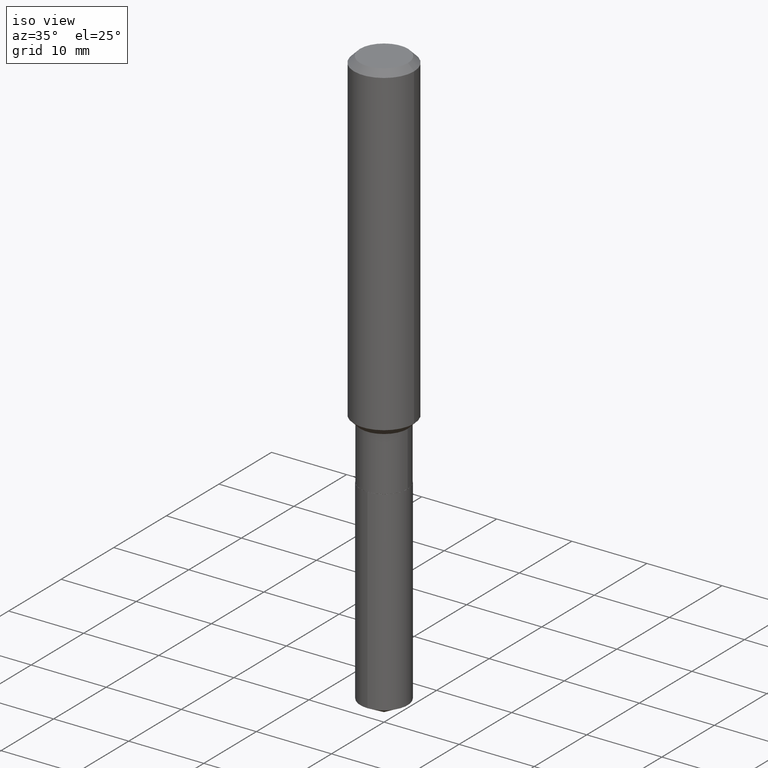
[diagram: clean part render]
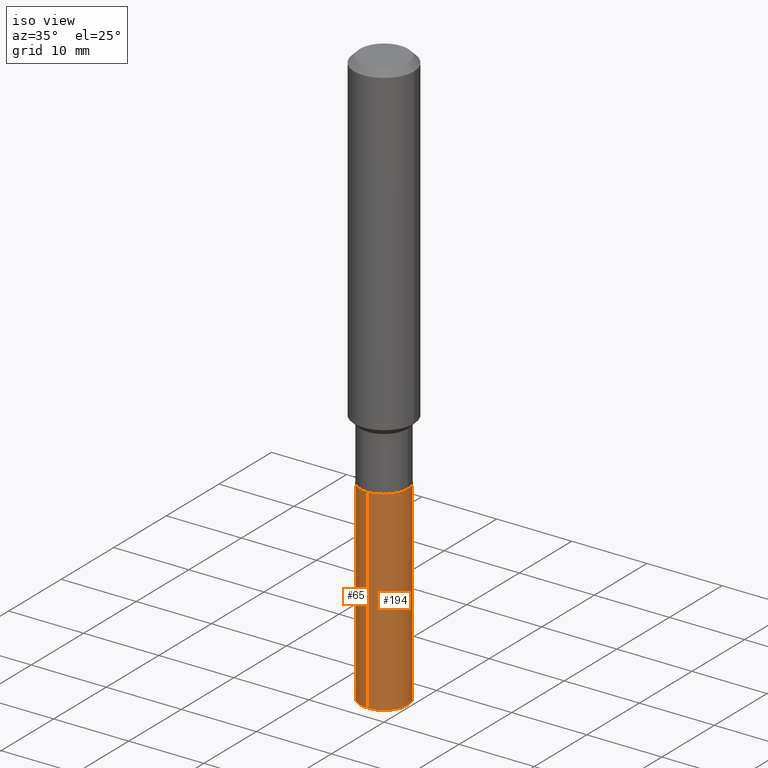
[diagram: same view with one multi-face feature highlighted, each face labeled with its STEP entity id]
A machine part, iso view. The highlighted faces form ONE feature: a constant-radius fillet chain: 2 tangent blend faces with common blend radius 3.1496 mm. The faces share edges in the B-rep.
Their STEP definitions:
[1] entity #65 (Cylinder):
#24 = EDGE_CURVE ( 'NONE', #393, #180, #60, .T. ) ;
#47 = CIRCLE ( 'NONE', #487, 0.1239999999999999991 ) ;
#55 = CARTESIAN_POINT ( 'NONE',  ( 8.810729923425734294E-16, 0.1239999999999929492, -2.019600000000000506 ) ) ;
#60 = CIRCLE ( 'NONE', #210, 0.1239999999999999991 ) ;
#65 = ADVANCED_FACE ( 'NONE', ( #467 ), #388, .T. ) ;
#84 = LINE ( 'NONE', #421, #272 ) ;
#86 = DIRECTION ( 'NONE',  ( -2.445312113218767742E-29, 3.491705732089395604E-15, 1.000000000000000000 ) ) ;
#91 = LINE ( 'NONE', #55, #112 ) ;
#96 = EDGE_CURVE ( 'NONE', #402, #180, #84, .T. ) ;
#106 = ORIENTED_EDGE ( 'NONE', *, *, #443, .F. ) ;
#112 = VECTOR ( 'NONE', #126, 39.37007874015748143 ) ;
#117 = DIRECTION ( 'NONE',  ( -2.445312113218767742E-29, 3.491705732089395604E-15, 1.000000000000000000 ) ) ;
#126 = DIRECTION ( 'NONE',  ( -2.445312113218767742E-29, 3.491705732089395604E-15, 1.000000000000000000 ) ) ;
#137 = EDGE_CURVE ( 'NONE', #366, #402, #47, .T. ) ;
#180 = VERTEX_POINT ( 'NONE', #484 ) ;
#185 = CARTESIAN_POINT ( 'NONE',  ( 4.938868800971501707E-29, -7.051395711927616472E-15, -2.019600000000000062 ) ) ;
#192 = ORIENTED_EDGE ( 'NONE', *, *, #24, .F. ) ;
#210 = AXIS2_PLACEMENT_3D ( 'NONE', #185, #332, #229 ) ;
#229 = DIRECTION ( 'NONE',  ( -6.982962677686265922E-15, -1.000000000000000000, 4.406206441393973340E-15 ) ) ;
#239 = ORIENTED_EDGE ( 'NONE', *, *, #96, .T. ) ;
#245 = DIRECTION ( 'NONE',  ( -6.982962677686265922E-15, -1.000000000000000000, 4.406206441393973340E-15 ) ) ;
#261 = CARTESIAN_POINT ( 'NONE',  ( -8.658873720330223828E-16, -0.1240000000000106156, -3.044268030473976427 ) ) ;
#272 = VECTOR ( 'NONE', #458, 39.37007874015748143 ) ;
#303 = AXIS2_PLACEMENT_3D ( 'NONE', #386, #117, #430 ) ;
#331 = ORIENTED_EDGE ( 'NONE', *, *, #137, .T. ) ;
#332 = DIRECTION ( 'NONE',  ( -2.445312113218767742E-29, 3.491705732089395604E-15, 1.000000000000000000 ) ) ;
#335 = EDGE_LOOP ( 'NONE', ( #106, #331, #239, #192 ) ) ;
#366 = VERTEX_POINT ( 'NONE', #390 ) ;
#386 = CARTESIAN_POINT ( 'NONE',  ( 4.938868800971501707E-29, -7.051395711927616472E-15, -2.019600000000000062 ) ) ;
#388 = CYLINDRICAL_SURFACE ( 'NONE', #303, 0.1239999999999999991 ) ;
#390 = CARTESIAN_POINT ( 'NONE',  ( 8.810729923425982785E-16, 0.1239999999999893548, -3.044268030473977760 ) ) ;
#393 = VERTEX_POINT ( 'NONE', #473 ) ;
#402 = VERTEX_POINT ( 'NONE', #261 ) ;
#421 = CARTESIAN_POINT ( 'NONE',  ( -8.658873720330475277E-16, -0.1240000000000070490, -2.019599999999999618 ) ) ;
#430 = DIRECTION ( 'NONE',  ( -6.982962677686265922E-15, -1.000000000000000000, 4.406206441393973340E-15 ) ) ;
#433 = CARTESIAN_POINT ( 'NONE',  ( 7.444501947917535459E-29, -1.062923494742235287E-14, -3.044268030473976872 ) ) ;
#443 = EDGE_CURVE ( 'NONE', #366, #393, #91, .T. ) ;
#458 = DIRECTION ( 'NONE',  ( -2.445312113218767742E-29, 3.491705732089395604E-15, 1.000000000000000000 ) ) ;
#467 = FACE_OUTER_BOUND ( 'NONE', #335, .T. ) ;
#473 = CARTESIAN_POINT ( 'NONE',  ( 8.810729923425987715E-16, 0.1239999999999929492, -2.019600000000000506 ) ) ;
#484 = CARTESIAN_POINT ( 'NONE',  ( -8.658873720330475277E-16, -0.1240000000000070490, -2.019599999999999618 ) ) ;
#487 = AXIS2_PLACEMENT_3D ( 'NONE', #433, #86, #245 ) ;
[2] entity #194 (Cylinder):
#12 = DIRECTION ( 'NONE',  ( -6.982962677686265922E-15, -1.000000000000000000, 4.406206441393973340E-15 ) ) ;
#49 = DIRECTION ( 'NONE',  ( -6.982962677686265922E-15, -1.000000000000000000, 4.406206441393973340E-15 ) ) ;
#55 = CARTESIAN_POINT ( 'NONE',  ( 8.810729923425734294E-16, 0.1239999999999929492, -2.019600000000000506 ) ) ;
#64 = EDGE_LOOP ( 'NONE', ( #312, #460, #214, #204 ) ) ;
#70 = DIRECTION ( 'NONE',  ( -2.445312113218767742E-29, 3.491705732089395604E-15, 1.000000000000000000 ) ) ;
#76 = CARTESIAN_POINT ( 'NONE',  ( 7.444501947917535459E-29, -1.062923494742235287E-14, -3.044268030473976872 ) ) ;
#84 = LINE ( 'NONE', #421, #272 ) ;
#88 = CIRCLE ( 'NONE', #399, 0.1239999999999999991 ) ;
#91 = LINE ( 'NONE', #55, #112 ) ;
#96 = EDGE_CURVE ( 'NONE', #402, #180, #84, .T. ) ;
#109 = DIRECTION ( 'NONE',  ( -2.445312113218767742E-29, 3.491705732089395604E-15, 1.000000000000000000 ) ) ;
#112 = VECTOR ( 'NONE', #126, 39.37007874015748143 ) ;
#116 = EDGE_CURVE ( 'NONE', #180, #393, #227, .T. ) ;
#126 = DIRECTION ( 'NONE',  ( -2.445312113218767742E-29, 3.491705732089395604E-15, 1.000000000000000000 ) ) ;
#138 = AXIS2_PLACEMENT_3D ( 'NONE', #163, #109, #12 ) ;
#163 = CARTESIAN_POINT ( 'NONE',  ( 4.938868800971501707E-29, -7.051395711927616472E-15, -2.019600000000000062 ) ) ;
#168 = DIRECTION ( 'NONE',  ( -2.445312113218767742E-29, 3.491705732089395604E-15, 1.000000000000000000 ) ) ;
#180 = VERTEX_POINT ( 'NONE', #484 ) ;
#194 = ADVANCED_FACE ( 'NONE', ( #215 ), #400, .T. ) ;
#204 = ORIENTED_EDGE ( 'NONE', *, *, #96, .F. ) ;
#214 = ORIENTED_EDGE ( 'NONE', *, *, #116, .F. ) ;
#215 = FACE_OUTER_BOUND ( 'NONE', #64, .T. ) ;
#218 = CARTESIAN_POINT ( 'NONE',  ( 4.938868800971501707E-29, -7.051395711927616472E-15, -2.019600000000000062 ) ) ;
#227 = CIRCLE ( 'NONE', #138, 0.1239999999999999991 ) ;
#261 = CARTESIAN_POINT ( 'NONE',  ( -8.658873720330223828E-16, -0.1240000000000106156, -3.044268030473976427 ) ) ;
#272 = VECTOR ( 'NONE', #458, 39.37007874015748143 ) ;
#287 = AXIS2_PLACEMENT_3D ( 'NONE', #218, #168, #406 ) ;
#312 = ORIENTED_EDGE ( 'NONE', *, *, #349, .T. ) ;
#349 = EDGE_CURVE ( 'NONE', #402, #366, #88, .T. ) ;
#366 = VERTEX_POINT ( 'NONE', #390 ) ;
#390 = CARTESIAN_POINT ( 'NONE',  ( 8.810729923425982785E-16, 0.1239999999999893548, -3.044268030473977760 ) ) ;
#393 = VERTEX_POINT ( 'NONE', #473 ) ;
#399 = AXIS2_PLACEMENT_3D ( 'NONE', #76, #70, #49 ) ;
#400 = CYLINDRICAL_SURFACE ( 'NONE', #287, 0.1239999999999999991 ) ;
#402 = VERTEX_POINT ( 'NONE', #261 ) ;
#406 = DIRECTION ( 'NONE',  ( -6.982962677686265922E-15, -1.000000000000000000, 4.406206441393973340E-15 ) ) ;
#421 = CARTESIAN_POINT ( 'NONE',  ( -8.658873720330475277E-16, -0.1240000000000070490, -2.019599999999999618 ) ) ;
#443 = EDGE_CURVE ( 'NONE', #366, #393, #91, .T. ) ;
#458 = DIRECTION ( 'NONE',  ( -2.445312113218767742E-29, 3.491705732089395604E-15, 1.000000000000000000 ) ) ;
#460 = ORIENTED_EDGE ( 'NONE', *, *, #443, .T. ) ;
#473 = CARTESIAN_POINT ( 'NONE',  ( 8.810729923425987715E-16, 0.1239999999999929492, -2.019600000000000506 ) ) ;
#484 = CARTESIAN_POINT ( 'NONE',  ( -8.658873720330475277E-16, -0.1240000000000070490, -2.019599999999999618 ) ) ;